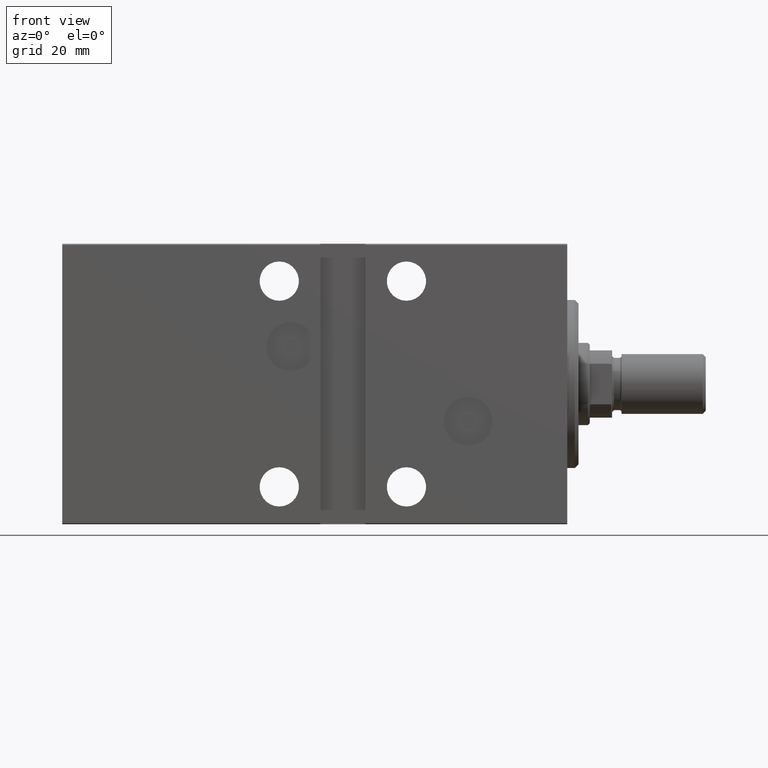
[diagram: clean part render]
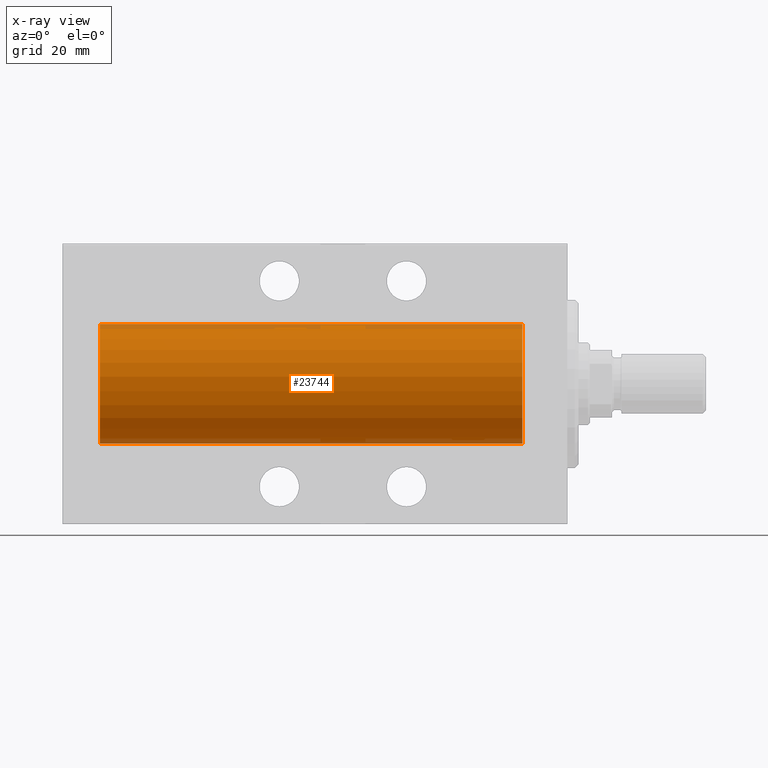
[diagram: x-ray — body ghosted, one internal face saturated and labeled with its STEP entity id]
A machine part, front view, then the same camera in x-ray: the body is ghosted and one INTERNAL B-rep face — a face not visible from any outside direction — is saturated and labeled: STEP entity #23744.
In plain terms, the highlighted cylindrical surface (partial cylindrical patch) has radius 16 mm, axis along (1, 0, -0).
Its self-contained STEP definition (entity closure, byte-faithful):
#155 = DIRECTION ( 'NONE',  ( 0.000000000000000000, 0.000000000000000000, 1.000000000000000000 ) ) ;
#3214 = DIRECTION ( 'NONE',  ( -1.000000000000000000, 0.000000000000000000, 0.000000000000000000 ) ) ;
#3447 = EDGE_CURVE ( 'NONE', #16509, #31283, #35666, .T. ) ;
#4167 = DIRECTION ( 'NONE',  ( -1.000000000000000000, -0.000000000000000000, -0.000000000000000000 ) ) ;
#4651 = DIRECTION ( 'NONE',  ( -1.000000000000000000, -0.000000000000000000, -0.000000000000000000 ) ) ;
#4770 = AXIS2_PLACEMENT_3D ( 'NONE', #41504, #4167, #155 ) ;
#5906 = CARTESIAN_POINT ( 'NONE',  ( 125.0000000000000000, 0.000000000000000000, 0.000000000000000000 ) ) ;
#7661 = ORIENTED_EDGE ( 'NONE', *, *, #23573, .T. ) ;
#13491 = DIRECTION ( 'NONE',  ( 0.000000000000000000, 0.000000000000000000, 1.000000000000000000 ) ) ;
#14239 = FACE_OUTER_BOUND ( 'NONE', #23151, .T. ) ;
#14583 = CARTESIAN_POINT ( 'NONE',  ( 125.0000000000000000, 1.959434878635765131E-15, -16.00000000000000000 ) ) ;
#15970 = DIRECTION ( 'NONE',  ( 0.000000000000000000, 0.000000000000000000, 1.000000000000000000 ) ) ;
#16509 = VERTEX_POINT ( 'NONE', #35813 ) ;
#20510 = CYLINDRICAL_SURFACE ( 'NONE', #4770, 16.00000000000000000 ) ;
#21825 = ORIENTED_EDGE ( 'NONE', *, *, #3447, .T. ) ;
#22314 = LINE ( 'NONE', #39727, #43989 ) ;
#23151 = EDGE_LOOP ( 'NONE', ( #26878, #26655, #7661, #21825 ) ) ;
#23554 = DIRECTION ( 'NONE',  ( -1.000000000000000000, 0.000000000000000000, 0.000000000000000000 ) ) ;
#23557 = CARTESIAN_POINT ( 'NONE',  ( 11.99999999999999645, 0.000000000000000000, 0.000000000000000000 ) ) ;
#23573 = EDGE_CURVE ( 'NONE', #37851, #16509, #22314, .T. ) ;
#23744 = ADVANCED_FACE ( 'NONE', ( #14239 ), #20510, .F. ) ;
#26655 = ORIENTED_EDGE ( 'NONE', *, *, #33347, .F. ) ;
#26878 = ORIENTED_EDGE ( 'NONE', *, *, #40783, .F. ) ;
#28634 = VECTOR ( 'NONE', #34694, 1000.000000000000000 ) ;
#30456 = CARTESIAN_POINT ( 'NONE',  ( 125.0000000000000000, 0.000000000000000000, 16.00000000000000000 ) ) ;
#31283 = VERTEX_POINT ( 'NONE', #42830 ) ;
#33347 = EDGE_CURVE ( 'NONE', #37851, #41002, #40707, .T. ) ;
#33526 = AXIS2_PLACEMENT_3D ( 'NONE', #23557, #3214, #13491 ) ;
#34694 = DIRECTION ( 'NONE',  ( -1.000000000000000000, -0.000000000000000000, -0.000000000000000000 ) ) ;
#35666 = CIRCLE ( 'NONE', #33526, 16.00000000000000000 ) ;
#35813 = CARTESIAN_POINT ( 'NONE',  ( 11.99999999999999645, 0.000000000000000000, 16.00000000000000000 ) ) ;
#37851 = VERTEX_POINT ( 'NONE', #30456 ) ;
#39468 = LINE ( 'NONE', #14583, #28634 ) ;
#39727 = CARTESIAN_POINT ( 'NONE',  ( 125.0000000000000000, 0.000000000000000000, 16.00000000000000000 ) ) ;
#39894 = AXIS2_PLACEMENT_3D ( 'NONE', #5906, #23554, #15970 ) ;
#40707 = CIRCLE ( 'NONE', #39894, 16.00000000000000000 ) ;
#40783 = EDGE_CURVE ( 'NONE', #41002, #31283, #39468, .T. ) ;
#41002 = VERTEX_POINT ( 'NONE', #41125 ) ;
#41125 = CARTESIAN_POINT ( 'NONE',  ( 125.0000000000000000, 1.959434878635765131E-15, -16.00000000000000000 ) ) ;
#41504 = CARTESIAN_POINT ( 'NONE',  ( 125.0000000000000000, 0.000000000000000000, 0.000000000000000000 ) ) ;
#42830 = CARTESIAN_POINT ( 'NONE',  ( 11.99999999999999645, 1.959434878635765131E-15, -16.00000000000000000 ) ) ;
#43989 = VECTOR ( 'NONE', #4651, 1000.000000000000000 ) ;